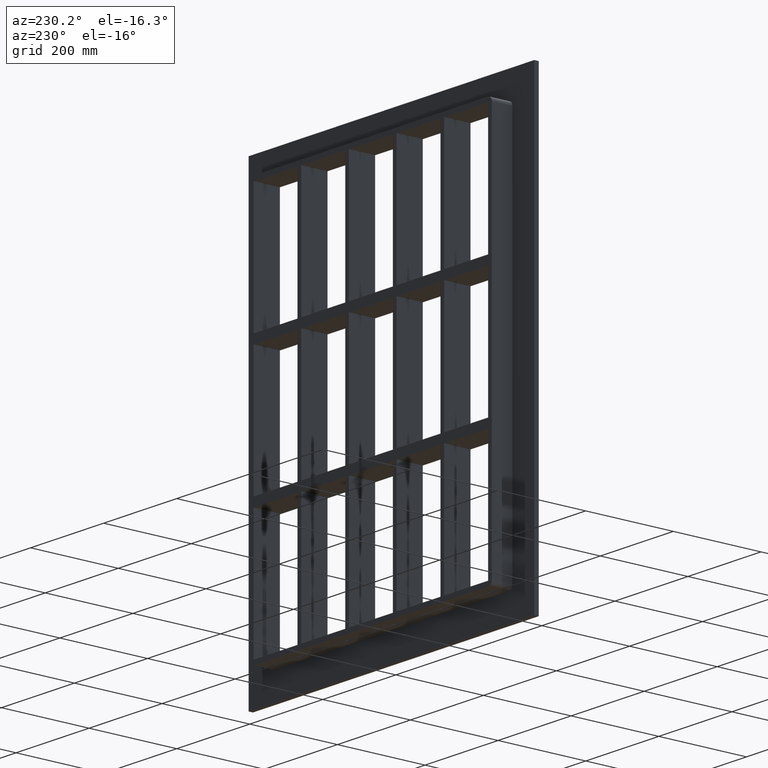
[diagram: clean part render]
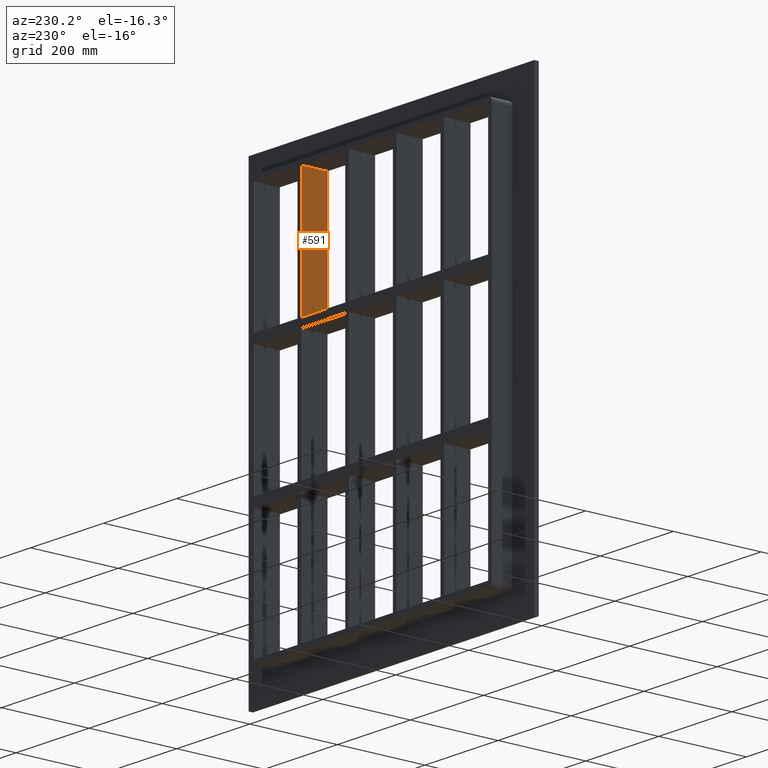
[diagram: same view with one face highlighted and labeled with its STEP entity id]
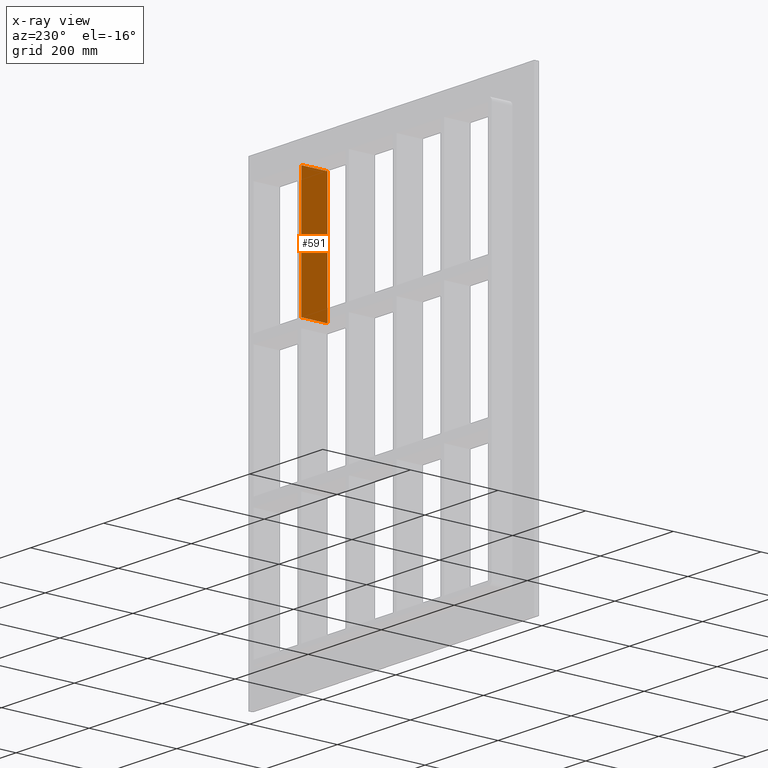
[diagram: x-ray of the same camera — body ghosted, the highlighted face saturated]
A machine part, auxiliary view. The second image highlights one B-rep face of the part: STEP entity #591.
The next image is the same camera in x-ray: the body ghosted, the highlighted face saturated — about 0% of this face is hidden behind the body in this view.
In plain terms, the highlighted planar face has unit normal (-1, 0, 0).
Its self-contained STEP definition (entity closure, byte-faithful):
#433=CARTESIAN_POINT('',(190.74999999999869,57.0,158.99999999999994));
#434=VERTEX_POINT('',#433);
#435=CARTESIAN_POINT('',(190.74999999999869,-3.0,158.99999999999994));
#436=VERTEX_POINT('',#435);
#437=CARTESIAN_POINT('',(190.74999999999872,57.0,158.99999999999994));
#438=DIRECTION('',(0.0,-1.0,0.0));
#439=VECTOR('',#438,60.0);
#440=LINE('',#437,#439);
#441=EDGE_CURVE('',#434,#436,#440,.T.);
#561=CARTESIAN_POINT('',(190.74999999999875,-3.0,-437.0));
#562=DIRECTION('',(-1.0,0.0,0.0));
#563=DIRECTION('',(0.0,0.0,1.0));
#564=AXIS2_PLACEMENT_3D('',#561,#562,#563);
#565=PLANE('',#564);
#566=ORIENTED_EDGE('',*,*,#441,.T.);
#567=CARTESIAN_POINT('',(190.74999999999869,-3.0,437.0));
#568=VERTEX_POINT('',#567);
#569=CARTESIAN_POINT('',(190.74999999999869,-3.0,159.0));
#570=DIRECTION('',(0.0,0.0,1.0));
#571=VECTOR('',#570,278.0);
#572=LINE('',#569,#571);
#573=EDGE_CURVE('',#436,#568,#572,.T.);
#574=ORIENTED_EDGE('',*,*,#573,.T.);
#575=CARTESIAN_POINT('',(190.74999999999869,57.0,437.0));
#576=VERTEX_POINT('',#575);
#577=CARTESIAN_POINT('',(190.74999999999869,57.000000000000007,437.0));
#578=DIRECTION('',(0.0,-1.0,0.0));
#579=VECTOR('',#578,60.000000000000007);
#580=LINE('',#577,#579);
#581=EDGE_CURVE('',#576,#568,#580,.T.);
#582=ORIENTED_EDGE('',*,*,#581,.F.);
#583=CARTESIAN_POINT('',(190.74999999999869,57.0,159.0));
#584=DIRECTION('',(0.0,0.0,1.0));
#585=VECTOR('',#584,278.0);
#586=LINE('',#583,#585);
#587=EDGE_CURVE('',#434,#576,#586,.T.);
#588=ORIENTED_EDGE('',*,*,#587,.F.);
#589=EDGE_LOOP('',(#566,#574,#582,#588));
#590=FACE_OUTER_BOUND('',#589,.T.);
#591=ADVANCED_FACE('',(#590),#565,.T.);